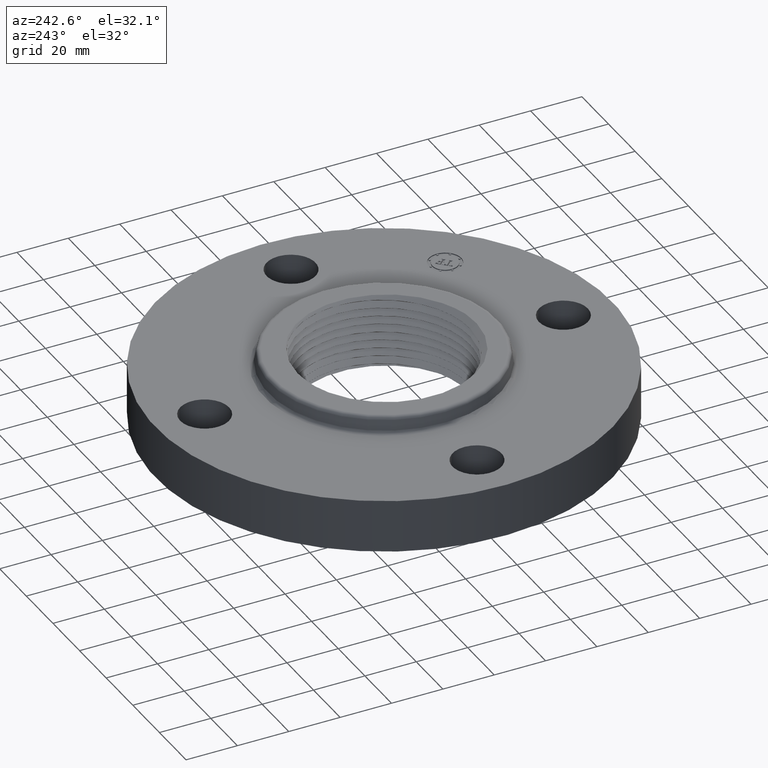
[diagram: clean part render]
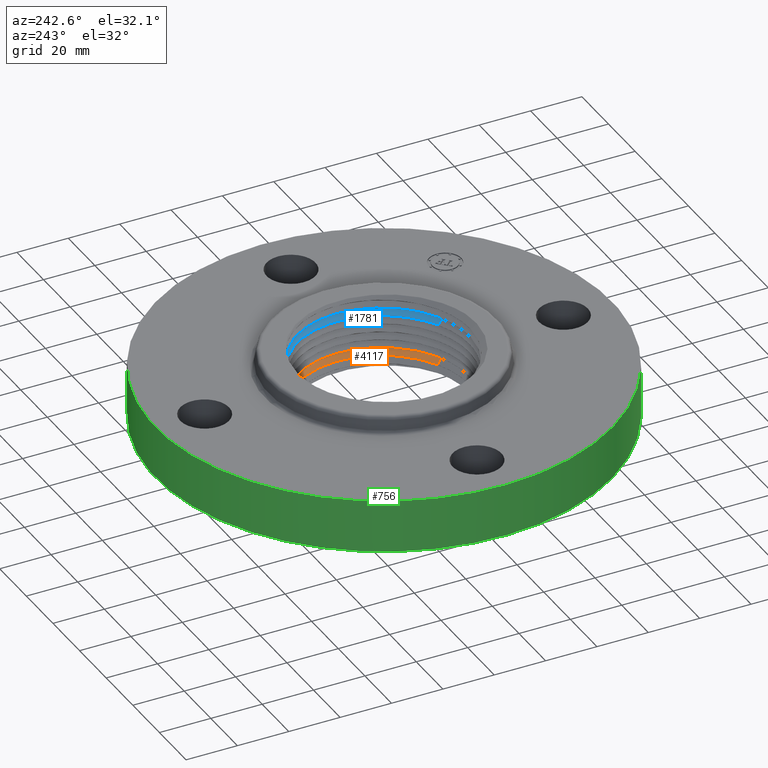
[diagram: same view with three faces highlighted in distinct colors, each labeled with its STEP entity id]
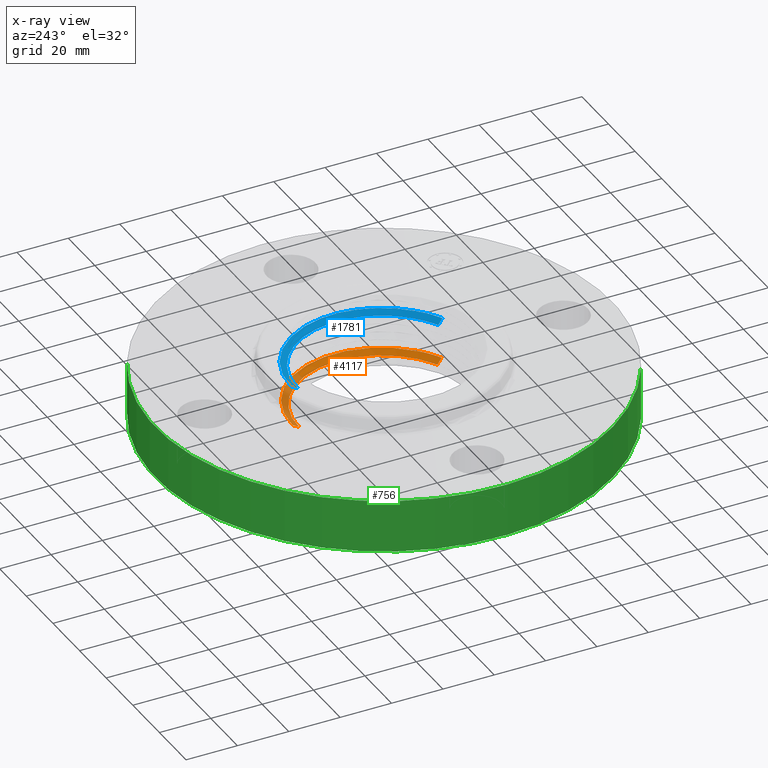
[diagram: x-ray of the same camera — body ghosted, the three highlighted faces saturated]
A machine part, auxiliary view with three faces highlighted in distinct colors.
The next image is the same camera in x-ray (body ghosted, the three faces saturated) — at least one of them is partly hidden behind the body in this view.
Their STEP definitions:

[orange] entity #4117 — the highlighted face is a freeform B-spline surface patch.
#3901=CARTESIAN_POINT('Vertex',(9.28787161196E-007,1.40373201586,0.243438258703)) ;
#3935=CARTESIAN_POINT('Control Point',(9.28787161887E-007,1.40373201586,0.243438258703)) ;
#3936=CARTESIAN_POINT('Control Point',(0.37083536704,1.40356753256,0.238182614028)) ;
#3937=CARTESIAN_POINT('Control Point',(0.741616335978,1.28094536253,0.232926189221)) ;
#3938=CARTESIAN_POINT('Control Point',(1.05696847467,1.03595224227,0.227686682007)) ;
#3939=CARTESIAN_POINT('Control Point',(1.4778853364,0.37794128871,0.217170611877)) ;
#3940=CARTESIAN_POINT('Control Point',(1.4238977076,-0.401319085529,0.206651349785)) ;
#3941=CARTESIAN_POINT('Control Point',(1.26452104276,-0.767521807968,0.201408678102)) ;
#3942=CARTESIAN_POINT('Control Point',(0.997727612492,-1.05279933254,0.19614746969)) ;
#3943=CARTESIAN_POINT('Control Point',(0.672196817568,-1.2304499607,0.190885442629)) ;
#3944=CARTESIAN_POINT('Vertex',(0.672196817568,-1.2304499607,0.190885442629)) ;
#4032=CARTESIAN_POINT('Control Point',(-1.70882942268E-005,1.30315339097,0.18486371151)) ;
#4033=CARTESIAN_POINT('Control Point',(9.28787161224E-007,1.40373201586,0.243438258703)) ;
#4034=CARTESIAN_POINT('Vertex',(-1.70882942269E-005,1.30315339097,0.18486371151)) ;
#4052=CARTESIAN_POINT('Control Point',(-1.7325601257E-005,1.3018286473,0.184092212982)) ;
#4053=CARTESIAN_POINT('Control Point',(9.28787161887E-007,1.40373201586,0.243438258703)) ;
#4054=CARTESIAN_POINT('Control Point',(0.343896422335,1.30166898639,0.178836568334)) ;
#4055=CARTESIAN_POINT('Control Point',(0.37083536704,1.40356753256,0.238182614028)) ;
#4056=CARTESIAN_POINT('Control Point',(0.687754294721,1.18794148134,0.173580146355)) ;
#4057=CARTESIAN_POINT('Control Point',(0.741616335978,1.28094536253,0.232926189221)) ;
#4058=CARTESIAN_POINT('Control Point',(0.98020083115,0.960731173923,0.168340636034)) ;
#4059=CARTESIAN_POINT('Control Point',(1.05696847467,1.03595224227,0.227686682007)) ;
#4060=CARTESIAN_POINT('Control Point',(1.37053289485,0.350500822487,0.157824566672)) ;
#4061=CARTESIAN_POINT('Control Point',(1.4778853364,0.37794128871,0.217170611877)) ;
#4062=CARTESIAN_POINT('Control Point',(1.32045022758,-0.372147448816,0.147305303947)) ;
#4063=CARTESIAN_POINT('Control Point',(1.4238977076,-0.401319085529,0.206651349785)) ;
#4064=CARTESIAN_POINT('Control Point',(1.17264491661,-0.711738562675,0.142062635449)) ;
#4065=CARTESIAN_POINT('Control Point',(1.26452104276,-0.767521807968,0.201408678102)) ;
#4066=CARTESIAN_POINT('Control Point',(0.925233259267,-0.976279070482,0.13680142427)) ;
#4067=CARTESIAN_POINT('Control Point',(0.997727612492,-1.05279933254,0.19614746969)) ;
#4068=CARTESIAN_POINT('Control Point',(0.623358739227,-1.14101205485,0.131539397244)) ;
#4069=CARTESIAN_POINT('Control Point',(0.672196817568,-1.2304499607,0.190885442629)) ;
#4071=CARTESIAN_POINT('Control Point',(0.623993634184,-1.14217474752,0.132310895759)) ;
#4072=CARTESIAN_POINT('Control Point',(0.672196817568,-1.2304499607,0.190885442629)) ;
#4073=CARTESIAN_POINT('Vertex',(0.623993634184,-1.14217474752,0.132310895759)) ;
#4077=CARTESIAN_POINT('Control Point',(0.623993634184,-1.14217474752,0.132310895759)) ;
#4078=CARTESIAN_POINT('Control Point',(0.68418511192,-1.10932822462,0.133359036048)) ;
#4079=CARTESIAN_POINT('Control Point',(0.742214411999,-1.07251716012,0.134407160189)) ;
#4080=CARTESIAN_POINT('Control Point',(0.798019709901,-1.03176013327,0.135460164883)) ;
#4081=CARTESIAN_POINT('Control Point',(0.904099917056,-0.942819005053,0.137570962691)) ;
#4082=CARTESIAN_POINT('Control Point',(0.997491012417,-0.840664221886,0.139681445216)) ;
#4083=CARTESIAN_POINT('Control Point',(1.04058945796,-0.786674994583,0.140734134053)) ;
#4084=CARTESIAN_POINT('Control Point',(1.1189409742,-0.674149296993,0.142825458544)) ;
#4085=CARTESIAN_POINT('Control Point',(1.1818961639,-0.552349845243,0.144916372108)) ;
#4086=CARTESIAN_POINT('Control Point',(1.20957881369,-0.489045547067,0.145969021419)) ;
#4087=CARTESIAN_POINT('Control Point',(1.25645851474,-0.358498353651,0.148083529004)) ;
#4088=CARTESIAN_POINT('Control Point',(1.28565829094,-0.222880526884,0.150198103264)) ;
#4089=CARTESIAN_POINT('Control Point',(1.29561600188,-0.154492722426,0.151250819511)) ;
#4090=CARTESIAN_POINT('Control Point',(1.30656308949,-0.0175297603506,0.153345689219)) ;
#4091=CARTESIAN_POINT('Control Point',(1.29946370586,0.119721277747,0.155441345851)) ;
#4092=CARTESIAN_POINT('Control Point',(1.29134821743,0.188273405907,0.156493213425)) ;
#4093=CARTESIAN_POINT('Control Point',(1.266150916,0.323655762207,0.158592312912)) ;
#4094=CARTESIAN_POINT('Control Point',(1.22339309847,0.454558999032,0.160691348122)) ;
#4095=CARTESIAN_POINT('Control Point',(1.19768491824,0.518704502535,0.161743713487)) ;
#4096=CARTESIAN_POINT('Control Point',(1.13771070612,0.643473362797,0.163853221251)) ;
#4097=CARTESIAN_POINT('Control Point',(1.0618063666,0.759217358722,0.165962414366)) ;
#4098=CARTESIAN_POINT('Control Point',(1.02014575451,0.814325418532,0.167014464509)) ;
#4099=CARTESIAN_POINT('Control Point',(0.930481735803,0.918068402694,0.169104545942)) ;
#4100=CARTESIAN_POINT('Control Point',(0.828031997676,1.00919339205,0.171194218901)) ;
#4101=CARTESIAN_POINT('Control Point',(0.773540928296,1.051674826,0.172246230928)) ;
#4102=CARTESIAN_POINT('Control Point',(0.658647804741,1.1293942321,0.174359440896)) ;
#4103=CARTESIAN_POINT('Control Point',(0.534472795741,1.1912476044,0.176472714963)) ;
#4104=CARTESIAN_POINT('Control Point',(0.47067628625,1.21782267091,0.177524791349)) ;
#4105=CARTESIAN_POINT('Control Point',(0.340709173454,1.26232576173,0.179617970754)) ;
#4106=CARTESIAN_POINT('Control Point',(0.205999621527,1.28943262721,0.181711933351)) ;
#4107=CARTESIAN_POINT('Control Point',(0.137600718004,1.29854777907,0.18276272727)) ;
#4108=CARTESIAN_POINT('Control Point',(0.0687934427015,1.30312146584,0.183813227011)) ;
#4109=CARTESIAN_POINT('Control Point',(-1.70882942277E-005,1.30315339097,0.18486371151)) ;
#4112=ORIENTED_EDGE('',*,*,#4075,.F.) ;
#4113=ORIENTED_EDGE('',*,*,#3946,.F.) ;
#4114=ORIENTED_EDGE('',*,*,#4036,.T.) ;
#4115=ORIENTED_EDGE('',*,*,#4110,.F.) ;
#4117=ADVANCED_FACE('PartBody',(#4116),#4051,.T.) ;
#3934=B_SPLINE_CURVE_WITH_KNOTS('',5,(#3935,#3936,#3937,#3938,#3939,#3940,#3941,#3942,#3943),.UNSPECIFIED.,.F.,.U.,(6,3,6),(0.,45.4551325223,90.9103427861),.UNSPECIFIED.) ;
#4031=B_SPLINE_CURVE_WITH_KNOTS('',1,(#4032,#4033),.UNSPECIFIED.,.F.,.U.,(2,2),(-1.45870575094,1.49764450472),.UNSPECIFIED.) ;
#4070=B_SPLINE_CURVE_WITH_KNOTS('',1,(#4071,#4072),.UNSPECIFIED.,.F.,.U.,(2,2),(-1.45870575139,1.49764450472),.UNSPECIFIED.) ;
#4076=B_SPLINE_CURVE_WITH_KNOTS('',5,(#4077,#4078,#4079,#4080,#4081,#4082,#4083,#4084,#4085,#4086,#4087,#4088,#4089,#4090,#4091,#4092,#4093,#4094,#4095,#4096,#4097,#4098,#4099,#4100,#4101,#4102,#4103,#4104,#4105,#4106,#4107,#4108,#4109),.UNSPECIFIED.,.F.,.U.,(6,3,3,3,3,3,3,3,3,3,6),(0.,12.8329959028,25.6659918055,38.4496365829,51.2332813603,64.1119728578,76.9411529318,89.7703330059,102.550275701,115.330218396,128.199682266),.UNSPECIFIED.) ;
#4051=B_SPLINE_SURFACE_WITH_KNOTS('',5,1,((#4052,#4053),(#4054,#4055),(#4056,#4057),(#4058,#4059),(#4060,#4061),(#4062,#4063),(#4064,#4065),(#4066,#4067),(#4068,#4069)),.UNSPECIFIED.,.F.,.F.,.U.,(6,3,6),(2,2),(0.,45.4551325223,90.9103427861),(-1.49764450472,1.49764450472),.UNSPECIFIED.) ;
#3946=EDGE_CURVE('',#3902,#3945,#3934,.T.) ;
#4036=EDGE_CURVE('',#3902,#4035,#4031,.F.) ;
#4075=EDGE_CURVE('',#3945,#4074,#4070,.F.) ;
#4110=EDGE_CURVE('',#4074,#4035,#4076,.T.) ;
#4111=EDGE_LOOP('',(#4112,#4113,#4114,#4115)) ;
#4116=FACE_OUTER_BOUND('',#4111,.T.) ;
#3902=VERTEX_POINT('',#3901) ;
#3945=VERTEX_POINT('',#3944) ;
#4035=VERTEX_POINT('',#4034) ;
#4074=VERTEX_POINT('',#4073) ;

[blue] entity #1781 — the highlighted face is a freeform B-spline surface patch.
#1526=CARTESIAN_POINT('Vertex',(9.16032960002E-007,1.42326315003,0.868438258898)) ;
#1530=CARTESIAN_POINT('Control Point',(9.16032958623E-007,1.42326315003,0.868438258898)) ;
#1531=CARTESIAN_POINT('Control Point',(0.502025923135,1.42304353749,0.861420954938)) ;
#1532=CARTESIAN_POINT('Control Point',(1.00395718361,1.20147592942,0.854402239004)) ;
#1533=CARTESIAN_POINT('Control Point',(1.36904475502,0.759381834558,0.847454418595)) ;
#1534=CARTESIAN_POINT('Control Point',(1.55273957211,-0.0424273518352,0.836928920656)) ;
#1535=CARTESIAN_POINT('Control Point',(1.24761879929,-0.750057214533,0.826400269479)) ;
#1536=CARTESIAN_POINT('Control Point',(1.094965737,-0.959103803176,0.822897301266)) ;
#1537=CARTESIAN_POINT('Control Point',(0.901483464588,-1.12757073631,0.819391548021)) ;
#1538=CARTESIAN_POINT('Control Point',(0.681560553309,-1.24759013733,0.815885442825)) ;
#1539=CARTESIAN_POINT('Vertex',(0.681560553309,-1.24759013733,0.815885442825)) ;
#1716=CARTESIAN_POINT('Control Point',(-4.27194700785E-006,1.3213597814,0.809092210728)) ;
#1717=CARTESIAN_POINT('Control Point',(9.16032958623E-007,1.42326315003,0.868438258898)) ;
#1718=CARTESIAN_POINT('Control Point',(0.466076401715,1.3211419988,0.802074906766)) ;
#1719=CARTESIAN_POINT('Control Point',(0.502025923135,1.42304353749,0.861420954938)) ;
#1720=CARTESIAN_POINT('Control Point',(0.93205693606,1.115424506,0.795056192077)) ;
#1721=CARTESIAN_POINT('Control Point',(1.00395718361,1.20147592942,0.854402239004)) ;
#1722=CARTESIAN_POINT('Control Point',(1.27097834512,0.70498246864,0.788108370462)) ;
#1723=CARTESIAN_POINT('Control Point',(1.36904475502,0.759381834558,0.847454418595)) ;
#1724=CARTESIAN_POINT('Control Point',(1.44148685637,-0.0393892506334,0.777582872543)) ;
#1725=CARTESIAN_POINT('Control Point',(1.55273957211,-0.0424273518352,0.836928920656)) ;
#1726=CARTESIAN_POINT('Control Point',(1.15821091198,-0.696301359605,0.767054221387)) ;
#1727=CARTESIAN_POINT('Control Point',(1.24761879929,-0.750057214533,0.826400269479)) ;
#1728=CARTESIAN_POINT('Control Point',(1.01649201118,-0.890361613813,0.763551253205)) ;
#1729=CARTESIAN_POINT('Control Point',(1.094965737,-0.959103803176,0.822897301266)) ;
#1730=CARTESIAN_POINT('Control Point',(0.836872749731,-1.04674820136,0.760045499955)) ;
#1731=CARTESIAN_POINT('Control Point',(0.901483464588,-1.12757073631,0.819391548021)) ;
#1732=CARTESIAN_POINT('Control Point',(0.632710980409,-1.1581585109,0.756539394754)) ;
#1733=CARTESIAN_POINT('Control Point',(0.681560553309,-1.24759013733,0.815885442825)) ;
#1735=CARTESIAN_POINT('Control Point',(0.633346024851,-1.15932112204,0.757310893373)) ;
#1736=CARTESIAN_POINT('Control Point',(0.681560553309,-1.24759013733,0.815885442825)) ;
#1737=CARTESIAN_POINT('Vertex',(0.633346024851,-1.15932112204,0.757310893373)) ;
#1741=CARTESIAN_POINT('Control Point',(-4.20450326851E-006,1.32268452518,0.80986370935)) ;
#1742=CARTESIAN_POINT('Control Point',(9.16032958734E-007,1.42326315003,0.868438258898)) ;
#1743=CARTESIAN_POINT('Vertex',(-4.20450326607E-006,1.32268452518,0.80986370935)) ;
#1747=CARTESIAN_POINT('Control Point',(-4.20450326821E-006,1.32268452518,0.80986370935)) ;
#1748=CARTESIAN_POINT('Control Point',(0.0699339228058,1.32265187479,0.808811776535)) ;
#1749=CARTESIAN_POINT('Control Point',(0.13986877219,1.31799667258,0.807759827499)) ;
#1750=CARTESIAN_POINT('Control Point',(0.209382404766,1.30871919904,0.806706500846)) ;
#1751=CARTESIAN_POINT('Control Point',(0.346455894697,1.28109732627,0.804604025676)) ;
#1752=CARTESIAN_POINT('Control Point',(0.478653363739,1.23574240293,0.802503108441)) ;
#1753=CARTESIAN_POINT('Control Point',(0.543293710374,1.20871895776,0.801451586275)) ;
#1754=CARTESIAN_POINT('Control Point',(0.668829106446,1.1461049321,0.799346299433)) ;
#1755=CARTESIAN_POINT('Control Point',(0.784980756818,1.06752968091,0.797244034148)) ;
#1756=CARTESIAN_POINT('Control Point',(0.840226052974,1.02452566449,0.796195534866)) ;
#1757=CARTESIAN_POINT('Control Point',(0.944306437763,0.931970587017,0.794107500179)) ;
#1758=CARTESIAN_POINT('Control Point',(1.0353731698,0.826607826114,0.792017405058)) ;
#1759=CARTESIAN_POINT('Control Point',(1.07755424768,0.770814621763,0.790967529123)) ;
#1760=CARTESIAN_POINT('Control Point',(1.15440460243,0.653712230117,0.788862229518)) ;
#1761=CARTESIAN_POINT('Control Point',(1.21518669941,0.527498338992,0.786755524793)) ;
#1762=CARTESIAN_POINT('Control Point',(1.24128108342,0.462583225508,0.785704242746)) ;
#1763=CARTESIAN_POINT('Control Point',(1.30655175958,0.263471090937,0.782555193771)) ;
#1764=CARTESIAN_POINT('Control Point',(1.33179294423,0.0539715437004,0.779410809923)) ;
#1765=CARTESIAN_POINT('Control Point',(1.32996487075,-0.087427293296,0.77731193113)) ;
#1766=CARTESIAN_POINT('Control Point',(1.29425780978,-0.330272007835,0.773648989447)) ;
#1767=CARTESIAN_POINT('Control Point',(1.20470096679,-0.557748276829,0.76998591996)) ;
#1768=CARTESIAN_POINT('Control Point',(1.15662381911,-0.652132864953,0.768401653414)) ;
#1769=CARTESIAN_POINT('Control Point',(1.04080636392,-0.831121524634,0.765207908324)) ;
#1770=CARTESIAN_POINT('Control Point',(0.891740503485,-0.983527606225,0.762013989095)) ;
#1771=CARTESIAN_POINT('Control Point',(0.810272666537,-1.0512157198,0.760429547936)) ;
#1772=CARTESIAN_POINT('Control Point',(0.724238060019,-1.10972163238,0.758870232996)) ;
#1773=CARTESIAN_POINT('Control Point',(0.633346024851,-1.15932112204,0.757310893373)) ;
#1776=ORIENTED_EDGE('',*,*,#1739,.F.) ;
#1777=ORIENTED_EDGE('',*,*,#1541,.F.) ;
#1778=ORIENTED_EDGE('',*,*,#1745,.T.) ;
#1779=ORIENTED_EDGE('',*,*,#1774,.T.) ;
#1781=ADVANCED_FACE('PartBody',(#1780),#1715,.T.) ;
#1529=B_SPLINE_CURVE_WITH_KNOTS('',5,(#1530,#1531,#1532,#1533,#1534,#1535,#1536,#1537,#1538),.UNSPECIFIED.,.F.,.U.,(6,3,6),(0.,61.5656544834,92.2894088509),.UNSPECIFIED.) ;
#1734=B_SPLINE_CURVE_WITH_KNOTS('',1,(#1735,#1736),.UNSPECIFIED.,.F.,.U.,(2,2),(-1.4587057479,1.49764450472),.UNSPECIFIED.) ;
#1740=B_SPLINE_CURVE_WITH_KNOTS('',1,(#1741,#1742),.UNSPECIFIED.,.F.,.U.,(2,2),(-1.45870574779,1.49764450472),.UNSPECIFIED.) ;
#1746=B_SPLINE_CURVE_WITH_KNOTS('',5,(#1747,#1748,#1749,#1750,#1751,#1752,#1753,#1754,#1755,#1756,#1757,#1758,#1759,#1760,#1761,#1762,#1763,#1764,#1765,#1766,#1767,#1768,#1769,#1770,#1771,#1772,#1773),.UNSPECIFIED.,.F.,.U.,(6,3,3,3,3,3,3,3,6),(0.,12.9800593446,25.9053300342,38.8306007238,51.749681677,64.6687626302,90.6188715687,109.848337956,129.077804344),.UNSPECIFIED.) ;
#1715=B_SPLINE_SURFACE_WITH_KNOTS('',5,1,((#1716,#1717),(#1718,#1719),(#1720,#1721),(#1722,#1723),(#1724,#1725),(#1726,#1727),(#1728,#1729),(#1730,#1731),(#1732,#1733)),.UNSPECIFIED.,.F.,.F.,.U.,(6,3,6),(2,2),(0.,61.5656544834,92.2894088509),(-1.49764450472,1.49764450472),.UNSPECIFIED.) ;
#1541=EDGE_CURVE('',#1527,#1540,#1529,.T.) ;
#1739=EDGE_CURVE('',#1540,#1738,#1734,.F.) ;
#1745=EDGE_CURVE('',#1527,#1744,#1740,.F.) ;
#1774=EDGE_CURVE('',#1744,#1738,#1746,.T.) ;
#1775=EDGE_LOOP('',(#1776,#1777,#1778,#1779)) ;
#1780=FACE_OUTER_BOUND('',#1775,.T.) ;
#1527=VERTEX_POINT('',#1526) ;
#1540=VERTEX_POINT('',#1539) ;
#1738=VERTEX_POINT('',#1737) ;
#1744=VERTEX_POINT('',#1743) ;

[green] entity #756 — the highlighted cylindrical surface (partial cylindrical patch) has radius 88.9 mm, axis along (0, 0, -1).
#491=AXIS2_PLACEMENT_3D('Circle Axis2P3D',#489,#490,$) ;
#717=AXIS2_PLACEMENT_3D('Cylinder Axis2P3D',#714,#715,#716) ;
#747=AXIS2_PLACEMENT_3D('Circle Axis2P3D',#745,#746,$) ;
#489=CARTESIAN_POINT('Axis2P3D Location',(0.,0.,0.)) ;
#493=CARTESIAN_POINT('Vertex',(-1.67798938512,-3.07153896663,4.89547160465E-016)) ;
#495=CARTESIAN_POINT('Vertex',(1.67798938512,3.07153896663,4.89547160465E-016)) ;
#714=CARTESIAN_POINT('Axis2P3D Location',(0.,0.,0.498750000002)) ;
#719=CARTESIAN_POINT('Line Origine',(1.67798938512,3.07153896663,0.405000000002)) ;
#723=CARTESIAN_POINT('Vertex',(1.67798938512,3.07153896663,0.810000000003)) ;
#730=CARTESIAN_POINT('Vertex',(-1.67798938512,-3.07153896663,0.810000000003)) ;
#733=CARTESIAN_POINT('Line Origine',(-1.67798938512,-3.07153896663,0.405000000002)) ;
#745=CARTESIAN_POINT('Axis2P3D Location',(0.,0.,0.810000000003)) ;
#490=DIRECTION('Axis2P3D Direction',(0.,0.,-0.0393700787402)) ;
#715=DIRECTION('Axis2P3D Direction',(0.,0.,-0.0393700787402)) ;
#716=DIRECTION('Axis2P3D XDirection',(-0.0188750212049,-0.0345504945626,0.)) ;
#720=DIRECTION('Vector Direction',(0.,0.,-0.0393700787402)) ;
#734=DIRECTION('Vector Direction',(0.,0.,-0.0393700787402)) ;
#746=DIRECTION('Axis2P3D Direction',(0.,0.,-0.0393700787402)) ;
#721=VECTOR('Line Direction',#720,0.0393700787402) ;
#735=VECTOR('Line Direction',#734,0.0393700787402) ;
#751=ORIENTED_EDGE('',*,*,#497,.F.) ;
#752=ORIENTED_EDGE('',*,*,#737,.T.) ;
#753=ORIENTED_EDGE('',*,*,#749,.T.) ;
#754=ORIENTED_EDGE('',*,*,#725,.F.) ;
#756=ADVANCED_FACE('PartBody',(#755),#718,.T.) ;
#492=CIRCLE('generated circle',#491,3.50000000001) ;
#748=CIRCLE('generated circle',#747,3.50000000001) ;
#718=CYLINDRICAL_SURFACE('generated cylinder',#717,3.50000000001) ;
#497=EDGE_CURVE('',#494,#496,#492,.T.) ;
#725=EDGE_CURVE('',#496,#724,#722,.F.) ;
#737=EDGE_CURVE('',#494,#731,#736,.F.) ;
#749=EDGE_CURVE('',#731,#724,#748,.T.) ;
#750=EDGE_LOOP('',(#751,#752,#753,#754)) ;
#755=FACE_OUTER_BOUND('',#750,.T.) ;
#722=LINE('Line',#719,#721) ;
#736=LINE('Line',#733,#735) ;
#494=VERTEX_POINT('',#493) ;
#496=VERTEX_POINT('',#495) ;
#724=VERTEX_POINT('',#723) ;
#731=VERTEX_POINT('',#730) ;